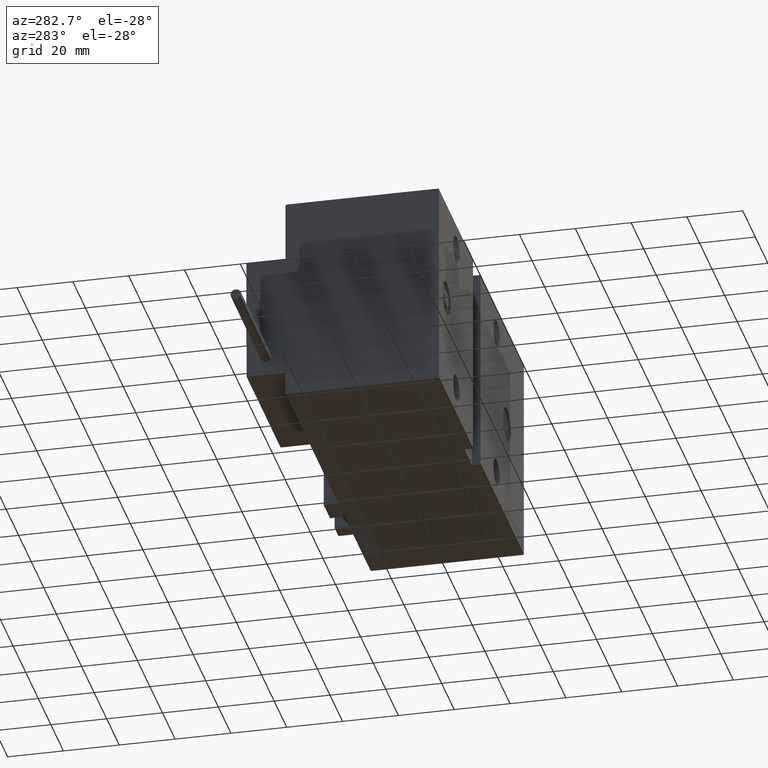
[diagram: clean part render]
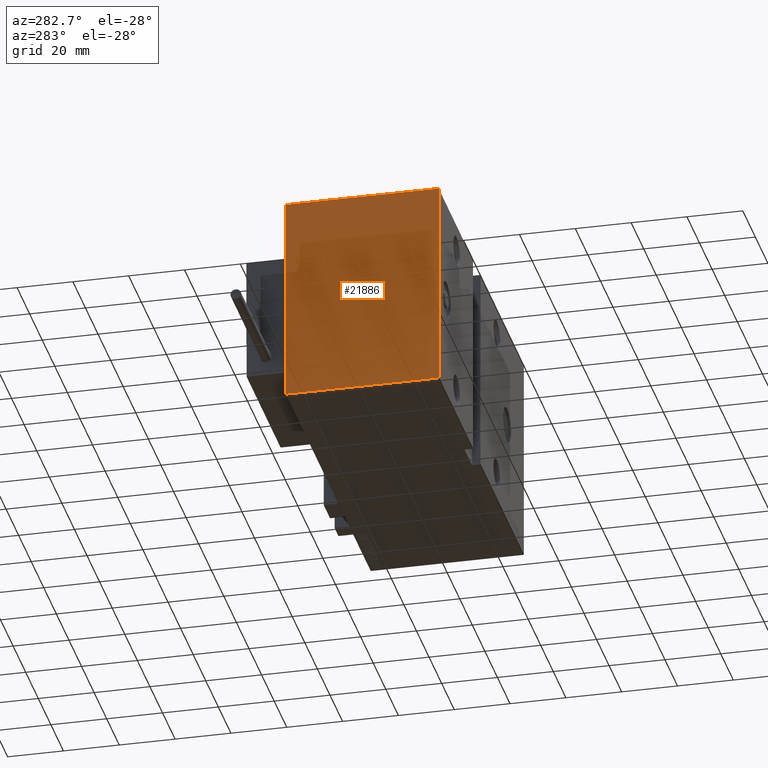
[diagram: same view with one face highlighted and labeled with its STEP entity id]
A machine part, auxiliary view. The second image highlights one B-rep face of the part: STEP entity #21886.
In plain terms, the highlighted planar face has unit normal (-1, 0, 0).
Its self-contained STEP definition (entity closure, byte-faithful):
#1790 = AXIS2_PLACEMENT_3D ( 'NONE', #46904, #35187, #11244 ) ;
#2253 = CARTESIAN_POINT ( 'NONE',  ( 135.0000000000000000, 27.49999999999999645, 37.20000000000002416 ) ) ;
#2892 = VERTEX_POINT ( 'NONE', #41111 ) ;
#4532 = CARTESIAN_POINT ( 'NONE',  ( 135.0000000000000000, -27.50000000000000000, 37.19999999999998153 ) ) ;
#5094 = EDGE_CURVE ( 'NONE', #41491, #23985, #13164, .T. ) ;
#5476 = DIRECTION ( 'NONE',  ( 0.000000000000000000, -9.251858538542970348E-17, 1.000000000000000000 ) ) ;
#5659 = EDGE_CURVE ( 'NONE', #14035, #2892, #16433, .T. ) ;
#7867 = DIRECTION ( 'NONE',  ( -0.000000000000000000, 0.7071067811865271446, 0.7071067811865678898 ) ) ;
#8398 = ORIENTED_EDGE ( 'NONE', *, *, #26260, .T. ) ;
#8636 = CARTESIAN_POINT ( 'NONE',  ( 135.0000000000000000, 32.35000000000079012, -32.34999999999892140 ) ) ;
#8948 = CARTESIAN_POINT ( 'NONE',  ( 135.0000000000000000, -27.50000000000000000, -37.19999999999999574 ) ) ;
#9390 = ORIENTED_EDGE ( 'NONE', *, *, #10629, .T. ) ;
#9556 = CARTESIAN_POINT ( 'NONE',  ( 135.0000000000000000, 32.35000000000000853, 32.35000000000000853 ) ) ;
#10326 = DIRECTION ( 'NONE',  ( -0.000000000000000000, 0.7071067811865638930, -0.7071067811865312525 ) ) ;
#10629 = EDGE_CURVE ( 'NONE', #23985, #35688, #33919, .T. ) ;
#11244 = DIRECTION ( 'NONE',  ( 0.000000000000000000, 0.000000000000000000, -1.000000000000000000 ) ) ;
#12062 = VECTOR ( 'NONE', #32900, 1000.000000000000000 ) ;
#12413 = VECTOR ( 'NONE', #16140, 1000.000000000000000 ) ;
#12723 = ORIENTED_EDGE ( 'NONE', *, *, #39662, .T. ) ;
#13164 = LINE ( 'NONE', #13421, #30305 ) ;
#13421 = CARTESIAN_POINT ( 'NONE',  ( 135.0000000000000000, -32.35000000000047038, 32.34999999999934772 ) ) ;
#13796 = VERTEX_POINT ( 'NONE', #27983 ) ;
#14035 = VERTEX_POINT ( 'NONE', #47713 ) ;
#14494 = LINE ( 'NONE', #29339, #16394 ) ;
#14792 = VECTOR ( 'NONE', #48090, 1000.000000000000000 ) ;
#16079 = CARTESIAN_POINT ( 'NONE',  ( 135.0000000000000000, -27.20000000000000284, 37.49999999999999289 ) ) ;
#16140 = DIRECTION ( 'NONE',  ( 0.000000000000000000, -1.000000000000000000, -2.523234146875355998E-16 ) ) ;
#16394 = VECTOR ( 'NONE', #10326, 1000.000000000000114 ) ;
#16433 = LINE ( 'NONE', #8636, #51086 ) ;
#16492 = EDGE_CURVE ( 'NONE', #22754, #41491, #43493, .T. ) ;
#17322 = EDGE_CURVE ( 'NONE', #2892, #19309, #17946, .T. ) ;
#17441 = ORIENTED_EDGE ( 'NONE', *, *, #17322, .T. ) ;
#17946 = LINE ( 'NONE', #40862, #32380 ) ;
#19309 = VERTEX_POINT ( 'NONE', #2253 ) ;
#19842 = ORIENTED_EDGE ( 'NONE', *, *, #42729, .T. ) ;
#21886 = ADVANCED_FACE ( 'NONE', ( #50808 ), #31032, .T. ) ;
#22754 = VERTEX_POINT ( 'NONE', #36322 ) ;
#23985 = VERTEX_POINT ( 'NONE', #4532 ) ;
#26202 = LINE ( 'NONE', #9556, #36694 ) ;
#26260 = EDGE_CURVE ( 'NONE', #13796, #14035, #51481, .T. ) ;
#27983 = CARTESIAN_POINT ( 'NONE',  ( 135.0000000000000000, -27.19999999999997797, -37.50000000000000711 ) ) ;
#29339 = CARTESIAN_POINT ( 'NONE',  ( 135.0000000000000000, -32.34999999999936193, -32.35000000000085407 ) ) ;
#29839 = DIRECTION ( 'NONE',  ( -0.000000000000000000, -0.7071067811865474617, 0.7071067811865474617 ) ) ;
#30305 = VECTOR ( 'NONE', #44911, 1000.000000000000000 ) ;
#31032 = PLANE ( 'NONE',  #1790 ) ;
#32380 = VECTOR ( 'NONE', #5476, 1000.000000000000000 ) ;
#32900 = DIRECTION ( 'NONE',  ( 0.000000000000000000, 0.000000000000000000, -1.000000000000000000 ) ) ;
#33148 = CARTESIAN_POINT ( 'NONE',  ( 135.0000000000000000, -27.50000000000000000, 37.49999999999999289 ) ) ;
#33919 = LINE ( 'NONE', #33148, #12062 ) ;
#35187 = DIRECTION ( 'NONE',  ( 1.000000000000000000, 0.000000000000000000, 0.000000000000000000 ) ) ;
#35688 = VERTEX_POINT ( 'NONE', #8948 ) ;
#36322 = CARTESIAN_POINT ( 'NONE',  ( 135.0000000000000000, 27.20000000000001705, 37.50000000000000711 ) ) ;
#36694 = VECTOR ( 'NONE', #29839, 1000.000000000000114 ) ;
#39479 = EDGE_LOOP ( 'NONE', ( #8398, #47369, #17441, #19842, #41420, #44724, #9390, #12723 ) ) ;
#39587 = CARTESIAN_POINT ( 'NONE',  ( 135.0000000000000000, 27.49999999999999645, 37.50000000000000711 ) ) ;
#39662 = EDGE_CURVE ( 'NONE', #35688, #13796, #14494, .T. ) ;
#40862 = CARTESIAN_POINT ( 'NONE',  ( 135.0000000000000000, 27.50000000000000355, -37.50000000000000711 ) ) ;
#41111 = CARTESIAN_POINT ( 'NONE',  ( 135.0000000000000000, 27.50000000000000355, -37.19999999999999574 ) ) ;
#41420 = ORIENTED_EDGE ( 'NONE', *, *, #16492, .T. ) ;
#41491 = VERTEX_POINT ( 'NONE', #16079 ) ;
#42729 = EDGE_CURVE ( 'NONE', #19309, #22754, #26202, .T. ) ;
#43493 = LINE ( 'NONE', #39587, #12413 ) ;
#44724 = ORIENTED_EDGE ( 'NONE', *, *, #5094, .T. ) ;
#44911 = DIRECTION ( 'NONE',  ( 0.000000000000000000, -0.7071067811865352493, -0.7071067811865597852 ) ) ;
#46904 = CARTESIAN_POINT ( 'NONE',  ( 135.0000000000000000, 0.000000000000000000, 0.000000000000000000 ) ) ;
#47369 = ORIENTED_EDGE ( 'NONE', *, *, #5659, .T. ) ;
#47573 = CARTESIAN_POINT ( 'NONE',  ( 135.0000000000000000, -27.50000000000000000, -37.50000000000000711 ) ) ;
#47713 = CARTESIAN_POINT ( 'NONE',  ( 135.0000000000000000, 27.20000000000001350, -37.50000000000000711 ) ) ;
#48090 = DIRECTION ( 'NONE',  ( 0.000000000000000000, 1.000000000000000000, 0.000000000000000000 ) ) ;
#50808 = FACE_OUTER_BOUND ( 'NONE', #39479, .T. ) ;
#51086 = VECTOR ( 'NONE', #7867, 1000.000000000000114 ) ;
#51481 = LINE ( 'NONE', #47573, #14792 ) ;